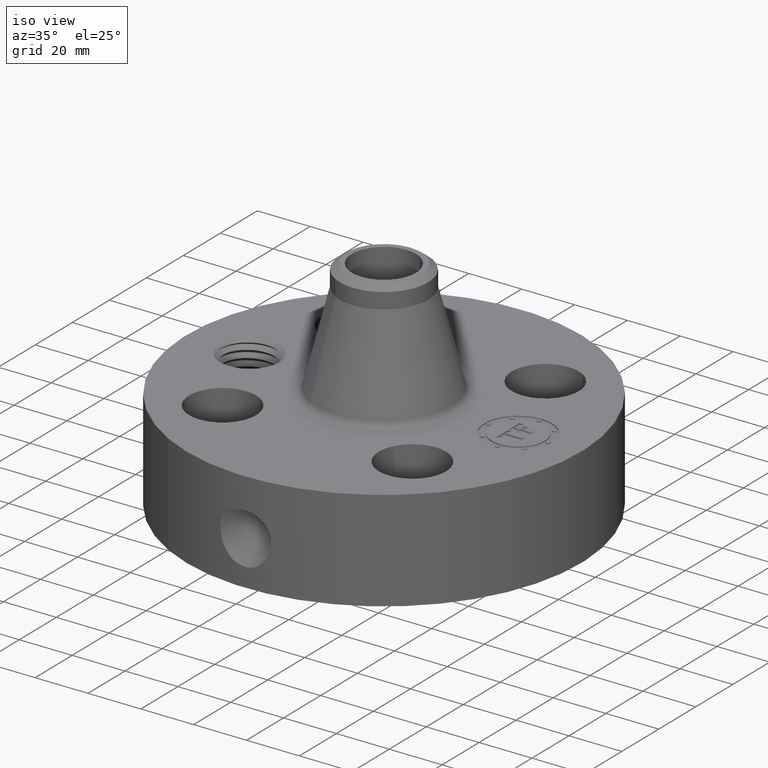
[diagram: clean part render]
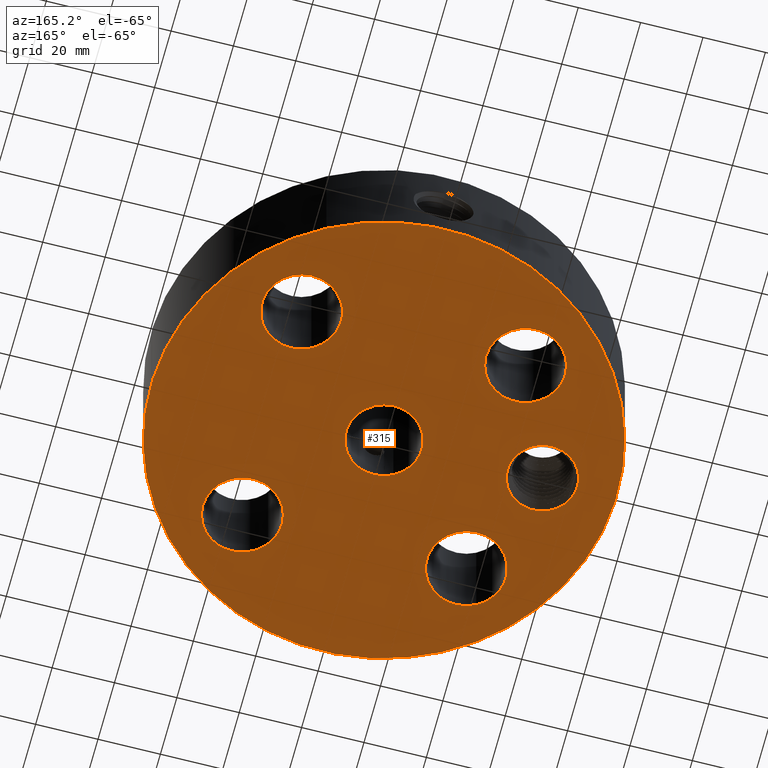
[diagram: tour spotlight — one face highlighted and labeled with its STEP entity id]
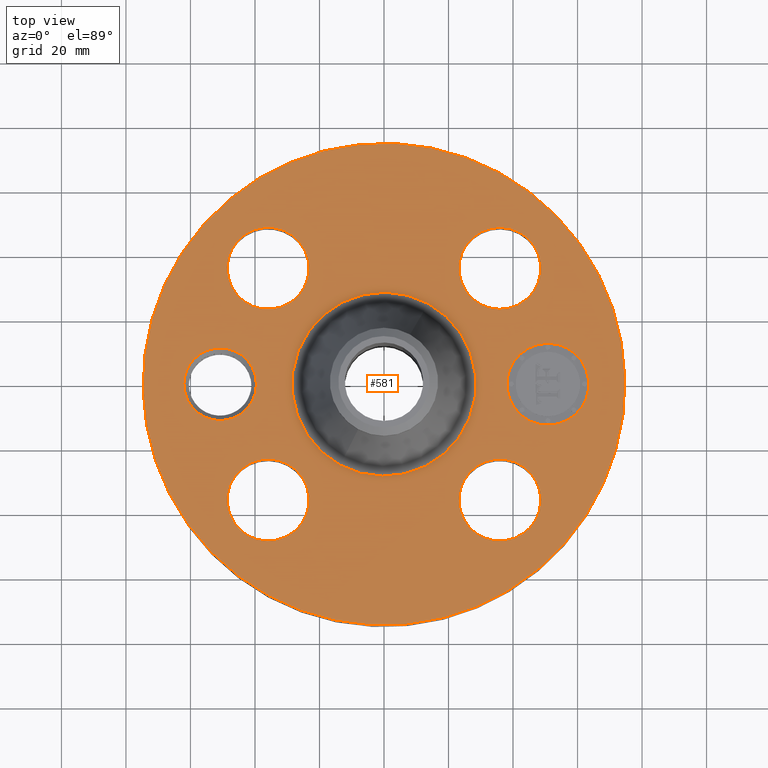
[diagram: tour spotlight — one face highlighted and labeled with its STEP entity id]
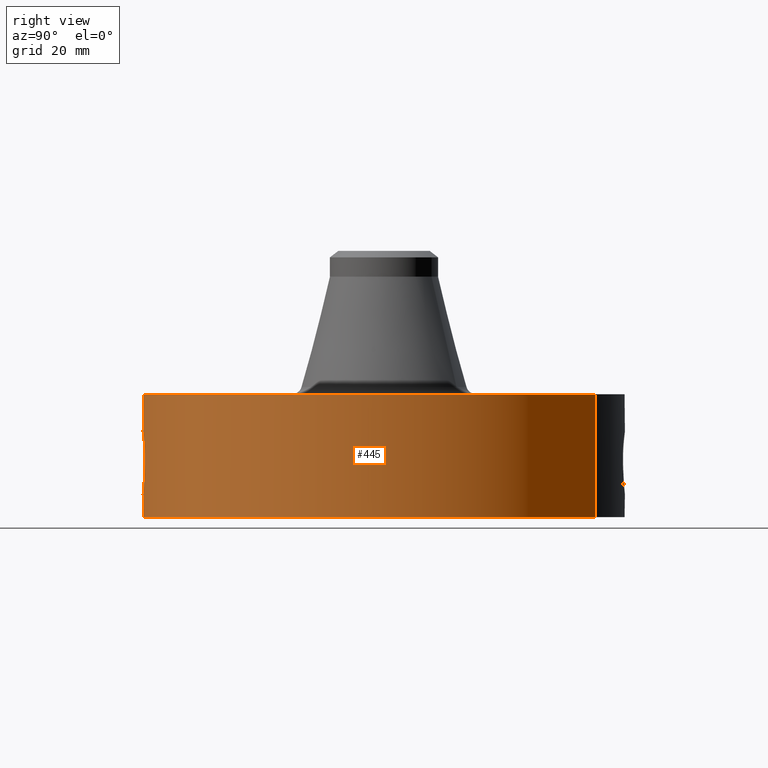
[diagram: tour spotlight — one face highlighted and labeled with its STEP entity id]
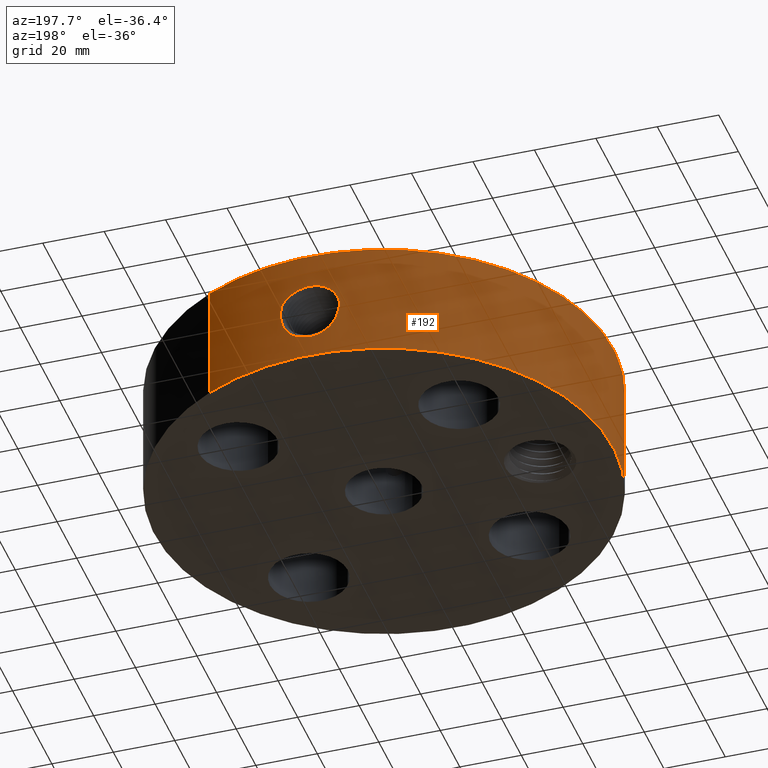
[diagram: tour spotlight — one face highlighted and labeled with its STEP entity id]
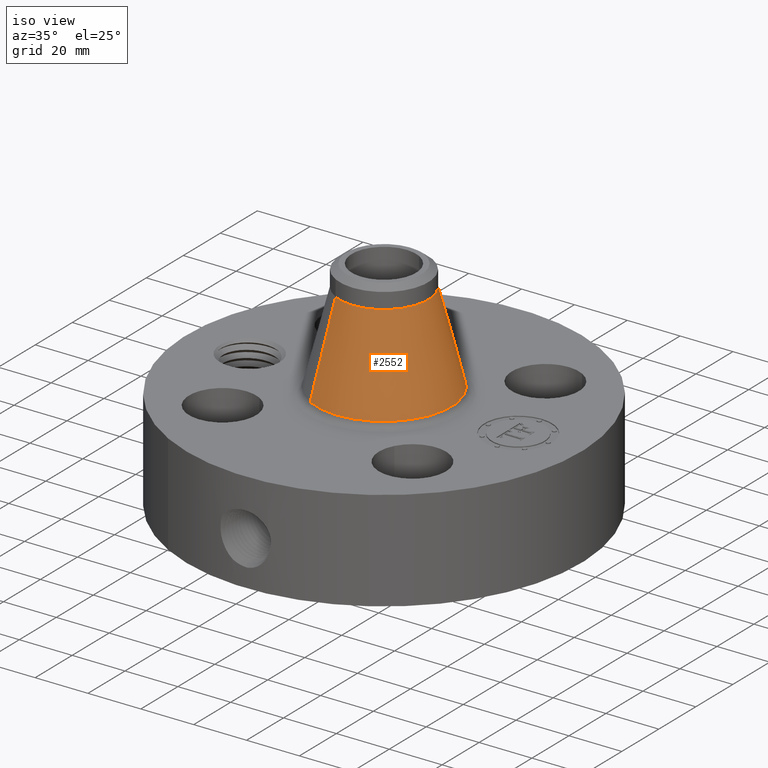
[diagram: tour spotlight — one face highlighted and labeled with its STEP entity id]
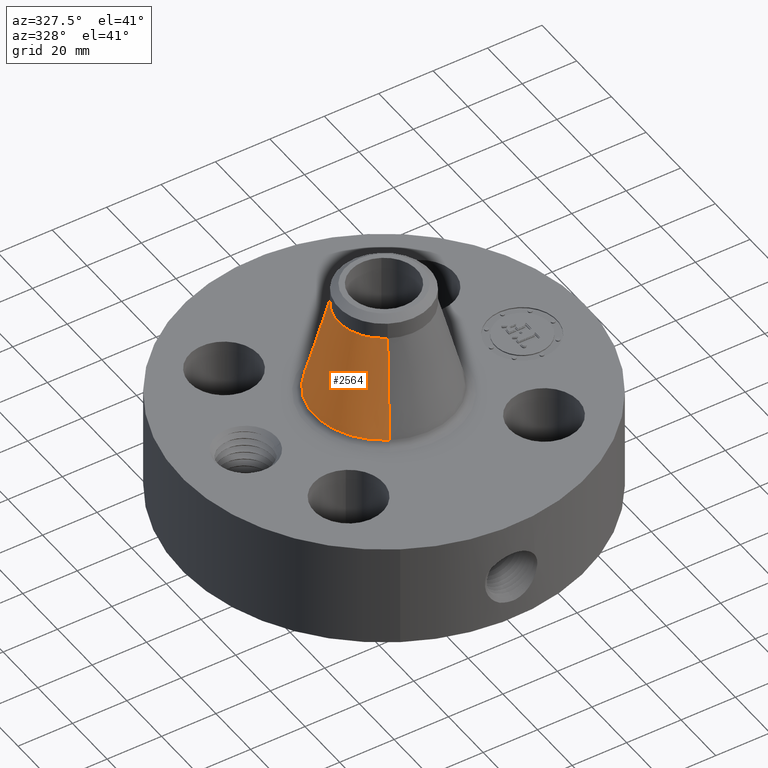
[diagram: tour spotlight — one face highlighted and labeled with its STEP entity id]
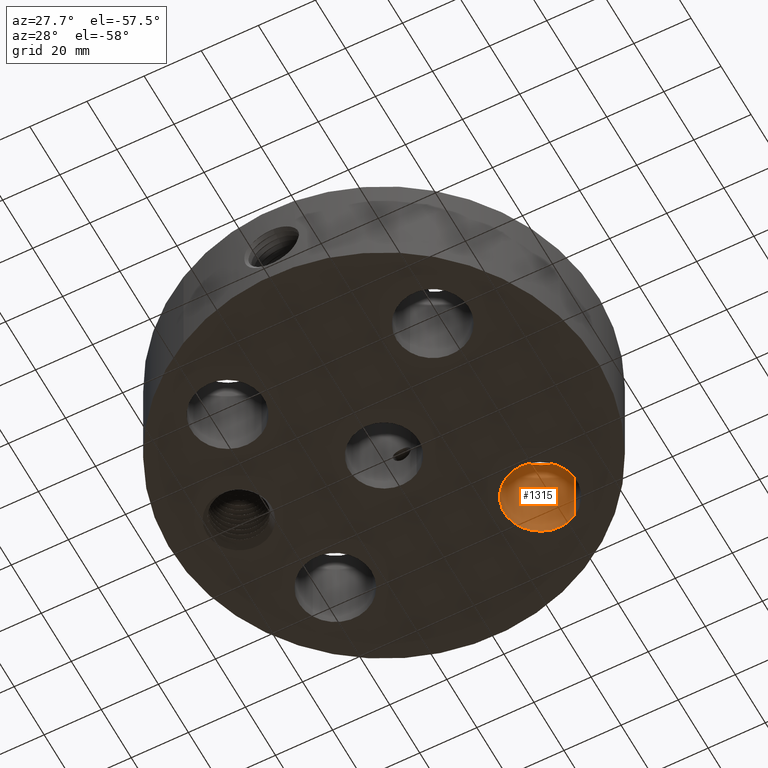
[diagram: tour spotlight — one face highlighted and labeled with its STEP entity id]
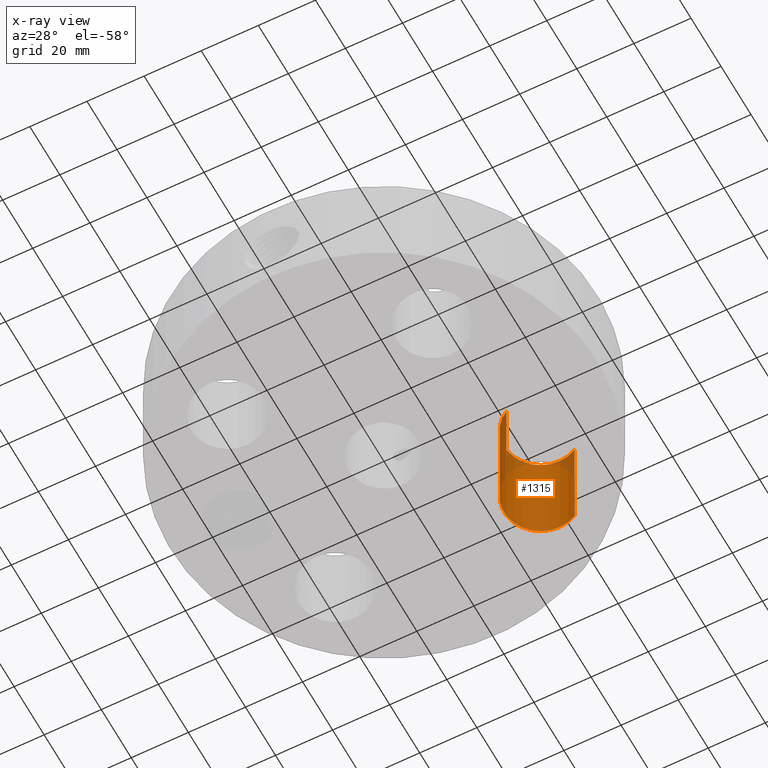
[diagram: x-ray of the same camera — body ghosted, this tour face saturated]
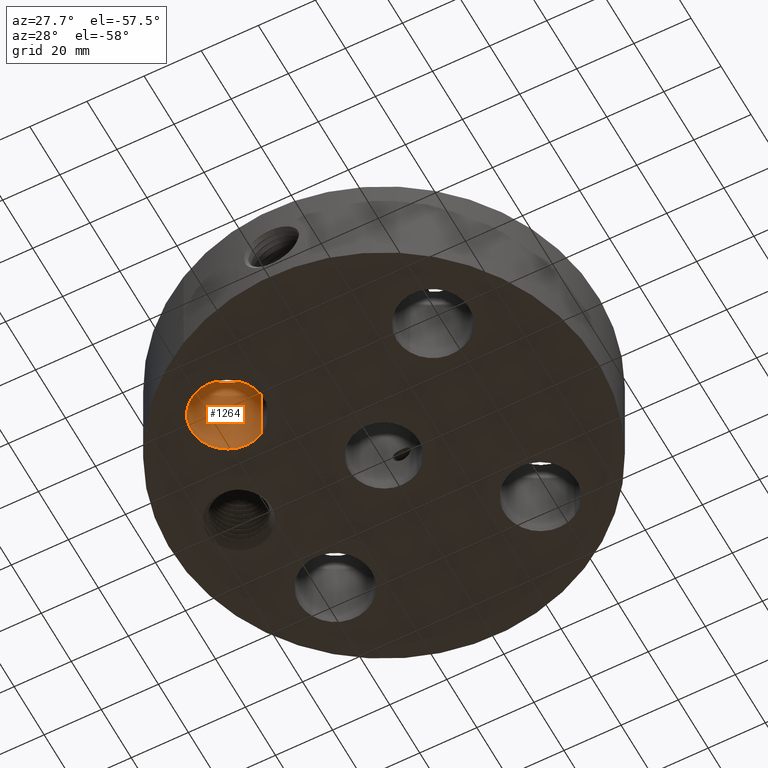
[diagram: tour spotlight — one face highlighted and labeled with its STEP entity id]
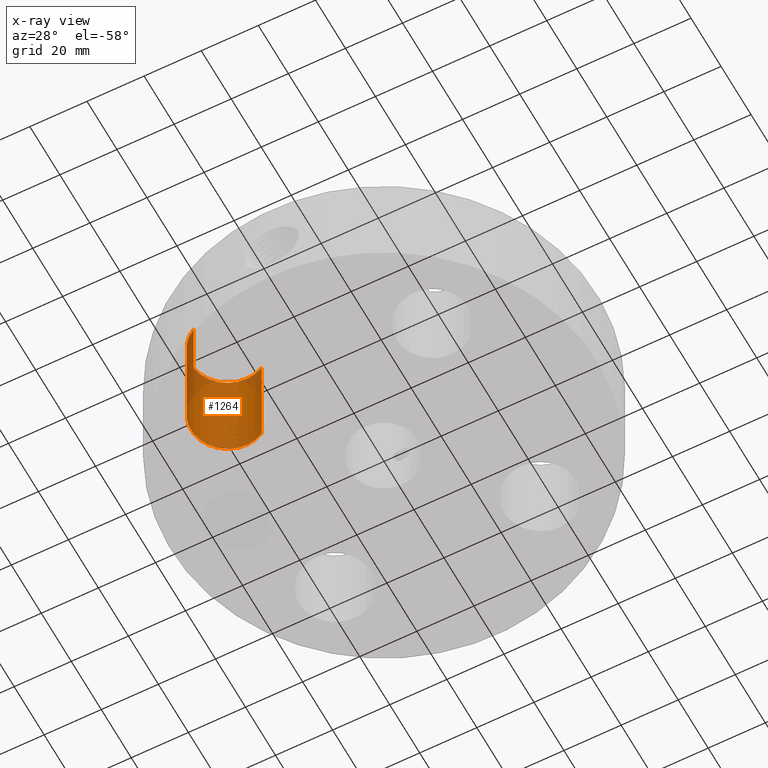
[diagram: x-ray of the same camera — body ghosted, this tour face saturated]
A machine part: a face-by-face anatomy tour. The part has 746 B-rep faces; the first image is the clean iso view, then the 8 largest visible faces are spotlighted one at a time (largest first), each with its STEP entity span.

Face 1 — auxiliary view, entity #315. In plain terms, the highlighted planar face has unit normal (0, 0, -1).
Definition (entity closure, byte-faithful):
#42=AXIS2_PLACEMENT_3D('Circle Axis2P3D',#40,#41,$) ;
#196=AXIS2_PLACEMENT_3D('Plane Axis2P3D',#193,#194,#195) ;
#200=AXIS2_PLACEMENT_3D('Circle Axis2P3D',#198,#199,$) ;
#209=AXIS2_PLACEMENT_3D('Circle Axis2P3D',#207,#208,$) ;
#218=AXIS2_PLACEMENT_3D('Circle Axis2P3D',#216,#217,$) ;
#227=AXIS2_PLACEMENT_3D('Circle Axis2P3D',#225,#226,$) ;
#236=AXIS2_PLACEMENT_3D('Circle Axis2P3D',#234,#235,$) ;
#245=AXIS2_PLACEMENT_3D('Circle Axis2P3D',#243,#244,$) ;
#254=AXIS2_PLACEMENT_3D('Circle Axis2P3D',#252,#253,$) ;
#263=AXIS2_PLACEMENT_3D('Circle Axis2P3D',#261,#262,$) ;
#272=AXIS2_PLACEMENT_3D('Circle Axis2P3D',#270,#271,$) ;
#281=AXIS2_PLACEMENT_3D('Circle Axis2P3D',#279,#280,$) ;
#290=AXIS2_PLACEMENT_3D('Circle Axis2P3D',#288,#289,$) ;
#299=AXIS2_PLACEMENT_3D('Circle Axis2P3D',#297,#298,$) ;
#308=AXIS2_PLACEMENT_3D('Circle Axis2P3D',#306,#307,$) ;
#40=CARTESIAN_POINT('Axis2P3D Location',(0.,0.,0.250000000001)) ;
#44=CARTESIAN_POINT('Vertex',(-1.4095110835,-2.58009273197,0.250000000001)) ;
#46=CARTESIAN_POINT('Vertex',(1.4095110835,2.58009273197,0.250000000001)) ;
#193=CARTESIAN_POINT('Axis2P3D Location',(0.,0.478500000002,0.250000000001)) ;
#198=CARTESIAN_POINT('Axis2P3D Location',(0.,0.,0.250000000001)) ;
#207=CARTESIAN_POINT('Axis2P3D Location',(-2.00000000001,6.99353086378E-017,0.250000000001)) ;
#211=CARTESIAN_POINT('Vertex',(-1.6114064416,-0.212289628495,0.250000000001)) ;
#213=CARTESIAN_POINT('Vertex',(-2.38859355841,0.212289628495,0.250000000001)) ;
#216=CARTESIAN_POINT('Axis2P3D Location',(-2.00000000001,6.99353086378E-017,0.250000000001)) ;
#225=CARTESIAN_POINT('Axis2P3D Location',(1.41421356238,-1.41421356238,0.250000000001)) ;
#229=CARTESIAN_POINT('Vertex',(1.85300484333,-1.65392633168,0.250000000001)) ;
#231=CARTESIAN_POINT('Vertex',(0.975422281432,-1.17450079308,0.250000000001)) ;
#234=CARTESIAN_POINT('Axis2P3D Location',(1.41421356238,-1.41421356238,0.250000000001)) ;
#243=CARTESIAN_POINT('Axis2P3D Location',(0.,0.,0.250000000001)) ;
#247=CARTESIAN_POINT('Vertex',(0.229405120223,0.419923255866,0.250000000001)) ;
#249=CARTESIAN_POINT('Vertex',(-0.229405120223,-0.419923255866,0.250000000001)) ;
#252=CARTESIAN_POINT('Axis2P3D Location',(0.,0.,0.250000000001)) ;
#261=CARTESIAN_POINT('Axis2P3D Location',(-1.41421356238,-1.41421356238,0.250000000001)) ;
#265=CARTESIAN_POINT('Vertex',(-1.17450079308,-0.975422281432,0.250000000001)) ;
#267=CARTESIAN_POINT('Vertex',(-1.65392633168,-1.85300484333,0.250000000001)) ;
#270=CARTESIAN_POINT('Axis2P3D Location',(-1.41421356238,-1.41421356238,0.250000000001)) ;
#279=CARTESIAN_POINT('Axis2P3D Location',(-1.41421356238,1.41421356238,0.250000000001)) ;
#283=CARTESIAN_POINT('Vertex',(-0.975422281432,1.17450079308,0.250000000001)) ;
#285=CARTESIAN_POINT('Vertex',(-1.85300484333,1.65392633168,0.250000000001)) ;
#288=CARTESIAN_POINT('Axis2P3D Location',(-1.41421356238,1.41421356238,0.250000000001)) ;
#297=CARTESIAN_POINT('Axis2P3D Location',(1.41421356238,1.41421356238,0.250000000001)) ;
#301=CARTESIAN_POINT('Vertex',(1.17450079308,0.975422281432,0.250000000001)) ;
#303=CARTESIAN_POINT('Vertex',(1.65392633168,1.85300484333,0.250000000001)) ;
#306=CARTESIAN_POINT('Axis2P3D Location',(1.41421356238,1.41421356238,0.250000000001)) ;
#41=DIRECTION('Axis2P3D Direction',(0.,0.,-0.0393700787402)) ;
#194=DIRECTION('Axis2P3D Direction',(0.,0.,-0.0393700787402)) ;
#195=DIRECTION('Axis2P3D XDirection',(0.0393700787402,0.,0.)) ;
#199=DIRECTION('Axis2P3D Direction',(0.,0.,-0.0393700787402)) ;
#208=DIRECTION('Axis2P3D Direction',(0.,0.,-0.0393700787402)) ;
#217=DIRECTION('Axis2P3D Direction',(0.,0.,-0.0393700787402)) ;
#226=DIRECTION('Axis2P3D Direction',(0.,0.,-0.0393700787402)) ;
#235=DIRECTION('Axis2P3D Direction',(0.,0.,-0.0393700787402)) ;
#244=DIRECTION('Axis2P3D Direction',(0.,0.,-0.0393700787402)) ;
#253=DIRECTION('Axis2P3D Direction',(0.,0.,-0.0393700787402)) ;
#262=DIRECTION('Axis2P3D Direction',(0.,0.,-0.0393700787402)) ;
#271=DIRECTION('Axis2P3D Direction',(0.,0.,-0.0393700787402)) ;
#280=DIRECTION('Axis2P3D Direction',(0.,0.,-0.0393700787402)) ;
#289=DIRECTION('Axis2P3D Direction',(0.,0.,-0.0393700787402)) ;
#298=DIRECTION('Axis2P3D Direction',(0.,0.,-0.0393700787402)) ;
#307=DIRECTION('Axis2P3D Direction',(0.,0.,-0.0393700787402)) ;
#204=ORIENTED_EDGE('',*,*,#48,.T.) ;
#205=ORIENTED_EDGE('',*,*,#202,.T.) ;
#222=ORIENTED_EDGE('',*,*,#215,.F.) ;
#223=ORIENTED_EDGE('',*,*,#220,.F.) ;
#240=ORIENTED_EDGE('',*,*,#233,.F.) ;
#241=ORIENTED_EDGE('',*,*,#238,.F.) ;
#258=ORIENTED_EDGE('',*,*,#251,.F.) ;
#259=ORIENTED_EDGE('',*,*,#256,.F.) ;
#276=ORIENTED_EDGE('',*,*,#269,.F.) ;
#277=ORIENTED_EDGE('',*,*,#274,.F.) ;
#294=ORIENTED_EDGE('',*,*,#287,.F.) ;
#295=ORIENTED_EDGE('',*,*,#292,.F.) ;
#312=ORIENTED_EDGE('',*,*,#305,.F.) ;
#313=ORIENTED_EDGE('',*,*,#310,.F.) ;
#224=FACE_BOUND('',#221,.T.) ;
#242=FACE_BOUND('',#239,.T.) ;
#260=FACE_BOUND('',#257,.T.) ;
#278=FACE_BOUND('',#275,.T.) ;
#296=FACE_BOUND('',#293,.T.) ;
#314=FACE_BOUND('',#311,.T.) ;
#315=ADVANCED_FACE('PartBody',(#206,#224,#242,#260,#278,#296,#314),#197,.T.) ;
#43=CIRCLE('generated circle',#42,2.94000000001) ;
#201=CIRCLE('generated circle',#200,2.94000000001) ;
#210=CIRCLE('generated circle',#209,0.442800000002) ;
#219=CIRCLE('generated circle',#218,0.442800000002) ;
#228=CIRCLE('generated circle',#227,0.500000000002) ;
#237=CIRCLE('generated circle',#236,0.500000000002) ;
#246=CIRCLE('generated circle',#245,0.478500000002) ;
#255=CIRCLE('generated circle',#254,0.478500000002) ;
#264=CIRCLE('generated circle',#263,0.500000000002) ;
#273=CIRCLE('generated circle',#272,0.500000000002) ;
#282=CIRCLE('generated circle',#281,0.500000000002) ;
#291=CIRCLE('generated circle',#290,0.500000000002) ;
#300=CIRCLE('generated circle',#299,0.500000000002) ;
#309=CIRCLE('generated circle',#308,0.500000000002) ;
#48=EDGE_CURVE('',#45,#47,#43,.T.) ;
#202=EDGE_CURVE('',#47,#45,#201,.T.) ;
#215=EDGE_CURVE('',#212,#214,#210,.T.) ;
#220=EDGE_CURVE('',#214,#212,#219,.T.) ;
#233=EDGE_CURVE('',#230,#232,#228,.T.) ;
#238=EDGE_CURVE('',#232,#230,#237,.T.) ;
#251=EDGE_CURVE('',#248,#250,#246,.T.) ;
#256=EDGE_CURVE('',#250,#248,#255,.T.) ;
#269=EDGE_CURVE('',#266,#268,#264,.T.) ;
#274=EDGE_CURVE('',#268,#266,#273,.T.) ;
#287=EDGE_CURVE('',#284,#286,#282,.T.) ;
#292=EDGE_CURVE('',#286,#284,#291,.T.) ;
#305=EDGE_CURVE('',#302,#304,#300,.T.) ;
#310=EDGE_CURVE('',#304,#302,#309,.T.) ;
#203=EDGE_LOOP('',(#204,#205)) ;
#221=EDGE_LOOP('',(#222,#223)) ;
#239=EDGE_LOOP('',(#240,#241)) ;
#257=EDGE_LOOP('',(#258,#259)) ;
#275=EDGE_LOOP('',(#276,#277)) ;
#293=EDGE_LOOP('',(#294,#295)) ;
#311=EDGE_LOOP('',(#312,#313)) ;
#206=FACE_OUTER_BOUND('',#203,.T.) ;
#197=PLANE('',#196) ;
#45=VERTEX_POINT('',#44) ;
#47=VERTEX_POINT('',#46) ;
#212=VERTEX_POINT('',#211) ;
#214=VERTEX_POINT('',#213) ;
#230=VERTEX_POINT('',#229) ;
#232=VERTEX_POINT('',#231) ;
#248=VERTEX_POINT('',#247) ;
#250=VERTEX_POINT('',#249) ;
#266=VERTEX_POINT('',#265) ;
#268=VERTEX_POINT('',#267) ;
#284=VERTEX_POINT('',#283) ;
#286=VERTEX_POINT('',#285) ;
#302=VERTEX_POINT('',#301) ;
#304=VERTEX_POINT('',#303) ;

Face 2 — top view, entity #581. In plain terms, the highlighted planar face has unit normal (0, 0, -1).
Definition (entity closure, byte-faithful):
#58=AXIS2_PLACEMENT_3D('Circle Axis2P3D',#56,#57,$) ;
#318=AXIS2_PLACEMENT_3D('Circle Axis2P3D',#316,#317,$) ;
#449=AXIS2_PLACEMENT_3D('Plane Axis2P3D',#446,#447,#448) ;
#457=AXIS2_PLACEMENT_3D('Circle Axis2P3D',#455,#456,$) ;
#466=AXIS2_PLACEMENT_3D('Circle Axis2P3D',#464,#465,$) ;
#475=AXIS2_PLACEMENT_3D('Circle Axis2P3D',#473,#474,$) ;
#484=AXIS2_PLACEMENT_3D('Circle Axis2P3D',#482,#483,$) ;
#493=AXIS2_PLACEMENT_3D('Circle Axis2P3D',#491,#492,$) ;
#502=AXIS2_PLACEMENT_3D('Circle Axis2P3D',#500,#501,$) ;
#511=AXIS2_PLACEMENT_3D('Circle Axis2P3D',#509,#510,$) ;
#520=AXIS2_PLACEMENT_3D('Circle Axis2P3D',#518,#519,$) ;
#529=AXIS2_PLACEMENT_3D('Circle Axis2P3D',#527,#528,$) ;
#538=AXIS2_PLACEMENT_3D('Circle Axis2P3D',#536,#537,$) ;
#547=AXIS2_PLACEMENT_3D('Circle Axis2P3D',#545,#546,$) ;
#556=AXIS2_PLACEMENT_3D('Circle Axis2P3D',#554,#555,$) ;
#565=AXIS2_PLACEMENT_3D('Circle Axis2P3D',#563,#564,$) ;
#574=AXIS2_PLACEMENT_3D('Circle Axis2P3D',#572,#573,$) ;
#53=CARTESIAN_POINT('Vertex',(-1.4095110835,-2.58009273197,1.75000000001)) ;
#56=CARTESIAN_POINT('Axis2P3D Location',(0.,0.,1.75000000001)) ;
#60=CARTESIAN_POINT('Vertex',(1.4095110835,2.58009273197,1.75000000001)) ;
#316=CARTESIAN_POINT('Axis2P3D Location',(0.,0.,1.75000000001)) ;
#446=CARTESIAN_POINT('Axis2P3D Location',(0.,2.94000000001,1.75000000001)) ;
#455=CARTESIAN_POINT('Axis2P3D Location',(-2.00000000001,5.59482469102E-016,1.75000000001)) ;
#459=CARTESIAN_POINT('Vertex',(-2.38859355841,0.212289628495,1.75000000001)) ;
#461=CARTESIAN_POINT('Vertex',(-1.6114064416,-0.212289628495,1.75000000001)) ;
#464=CARTESIAN_POINT('Axis2P3D Location',(-2.00000000001,5.59482469102E-016,1.75000000001)) ;
#473=CARTESIAN_POINT('Axis2P3D Location',(1.41421356238,-1.41421356238,1.75000000001)) ;
#477=CARTESIAN_POINT('Vertex',(0.975422281432,-1.17450079308,1.75000000001)) ;
#479=CARTESIAN_POINT('Vertex',(1.85300484333,-1.65392633168,1.75000000001)) ;
#482=CARTESIAN_POINT('Axis2P3D Location',(1.41421356238,-1.41421356238,1.75000000001)) ;
#491=CARTESIAN_POINT('Axis2P3D Location',(0.,0.,1.75000000001)) ;
#495=CARTESIAN_POINT('Vertex',(-0.538386626956,-0.985510110177,1.75000000001)) ;
#497=CARTESIAN_POINT('Vertex',(0.538386626956,0.985510110177,1.75000000001)) ;
#500=CARTESIAN_POINT('Axis2P3D Location',(0.,0.,1.75000000001)) ;
#509=CARTESIAN_POINT('Axis2P3D Location',(-1.41421356238,-1.41421356238,1.75000000001)) ;
#513=CARTESIAN_POINT('Vertex',(-1.65392633168,-1.85300484333,1.75000000001)) ;
#515=CARTESIAN_POINT('Vertex',(-1.17450079308,-0.975422281432,1.75000000001)) ;
#518=CARTESIAN_POINT('Axis2P3D Location',(-1.41421356238,-1.41421356238,1.75000000001)) ;
#527=CARTESIAN_POINT('Axis2P3D Location',(-1.41421356238,1.41421356238,1.75000000001)) ;
#531=CARTESIAN_POINT('Vertex',(-1.85300484333,1.65392633168,1.75000000001)) ;
#533=CARTESIAN_POINT('Vertex',(-0.975422281432,1.17450079308,1.75000000001)) ;
#536=CARTESIAN_POINT('Axis2P3D Location',(-1.41421356238,1.41421356238,1.75000000001)) ;
#545=CARTESIAN_POINT('Axis2P3D Location',(1.41421356238,1.41421356238,1.75000000001)) ;
#549=CARTESIAN_POINT('Vertex',(1.65392633168,1.85300484333,1.75000000001)) ;
#551=CARTESIAN_POINT('Vertex',(1.17450079308,0.975422281432,1.75000000001)) ;
#554=CARTESIAN_POINT('Axis2P3D Location',(1.41421356238,1.41421356238,1.75000000001)) ;
#563=CARTESIAN_POINT('Axis2P3D Location',(2.00000000001,-5.03534222192E-015,1.75000000001)) ;
#567=CARTESIAN_POINT('Vertex',(2.00000000001,0.499999995002,1.75000000001)) ;
#569=CARTESIAN_POINT('Vertex',(2.00000000001,-0.499999995002,1.75000000001)) ;
#572=CARTESIAN_POINT('Axis2P3D Location',(2.00000000001,-5.03534222192E-015,1.75000000001)) ;
#57=DIRECTION('Axis2P3D Direction',(0.,0.,-0.0393700787402)) ;
#317=DIRECTION('Axis2P3D Direction',(0.,0.,-0.0393700787402)) ;
#447=DIRECTION('Axis2P3D Direction',(0.,0.,-0.0393700787402)) ;
#448=DIRECTION('Axis2P3D XDirection',(0.0393700787402,0.,0.)) ;
#456=DIRECTION('Axis2P3D Direction',(0.,0.,-0.0393700787402)) ;
#465=DIRECTION('Axis2P3D Direction',(0.,0.,-0.0393700787402)) ;
#474=DIRECTION('Axis2P3D Direction',(0.,0.,-0.0393700787402)) ;
#483=DIRECTION('Axis2P3D Direction',(0.,0.,-0.0393700787402)) ;
#492=DIRECTION('Axis2P3D Direction',(0.,0.,-0.0393700787402)) ;
#501=DIRECTION('Axis2P3D Direction',(0.,0.,-0.0393700787402)) ;
#510=DIRECTION('Axis2P3D Direction',(0.,0.,-0.0393700787402)) ;
#519=DIRECTION('Axis2P3D Direction',(0.,0.,-0.0393700787402)) ;
#528=DIRECTION('Axis2P3D Direction',(0.,0.,-0.0393700787402)) ;
#537=DIRECTION('Axis2P3D Direction',(0.,0.,-0.0393700787402)) ;
#546=DIRECTION('Axis2P3D Direction',(0.,0.,-0.0393700787402)) ;
#555=DIRECTION('Axis2P3D Direction',(0.,0.,-0.0393700787402)) ;
#564=DIRECTION('Axis2P3D Direction',(0.,0.,-0.0393700787402)) ;
#573=DIRECTION('Axis2P3D Direction',(0.,0.,-0.0393700787402)) ;
#452=ORIENTED_EDGE('',*,*,#320,.F.) ;
#453=ORIENTED_EDGE('',*,*,#62,.F.) ;
#470=ORIENTED_EDGE('',*,*,#463,.T.) ;
#471=ORIENTED_EDGE('',*,*,#468,.T.) ;
#488=ORIENTED_EDGE('',*,*,#481,.T.) ;
#489=ORIENTED_EDGE('',*,*,#486,.T.) ;
#506=ORIENTED_EDGE('',*,*,#499,.T.) ;
#507=ORIENTED_EDGE('',*,*,#504,.T.) ;
#524=ORIENTED_EDGE('',*,*,#517,.T.) ;
#525=ORIENTED_EDGE('',*,*,#522,.T.) ;
#542=ORIENTED_EDGE('',*,*,#535,.T.) ;
#543=ORIENTED_EDGE('',*,*,#540,.T.) ;
#560=ORIENTED_EDGE('',*,*,#553,.T.) ;
#561=ORIENTED_EDGE('',*,*,#558,.T.) ;
#578=ORIENTED_EDGE('',*,*,#571,.T.) ;
#579=ORIENTED_EDGE('',*,*,#576,.T.) ;
#472=FACE_BOUND('',#469,.T.) ;
#490=FACE_BOUND('',#487,.T.) ;
#508=FACE_BOUND('',#505,.T.) ;
#526=FACE_BOUND('',#523,.T.) ;
#544=FACE_BOUND('',#541,.T.) ;
#562=FACE_BOUND('',#559,.T.) ;
#580=FACE_BOUND('',#577,.T.) ;
#581=ADVANCED_FACE('PartBody',(#454,#472,#490,#508,#526,#544,#562,#580),#450,.F.) ;
#59=CIRCLE('generated circle',#58,2.94000000001) ;
#319=CIRCLE('generated circle',#318,2.94000000001) ;
#458=CIRCLE('generated circle',#457,0.442800000002) ;
#467=CIRCLE('generated circle',#466,0.442800000002) ;
#476=CIRCLE('generated circle',#475,0.500000000002) ;
#485=CIRCLE('generated circle',#484,0.500000000002) ;
#494=CIRCLE('generated circle',#493,1.12298278586) ;
#503=CIRCLE('generated circle',#502,1.12298278586) ;
#512=CIRCLE('generated circle',#511,0.500000000002) ;
#521=CIRCLE('generated circle',#520,0.500000000002) ;
#530=CIRCLE('generated circle',#529,0.500000000002) ;
#539=CIRCLE('generated circle',#538,0.500000000002) ;
#548=CIRCLE('generated circle',#547,0.500000000002) ;
#557=CIRCLE('generated circle',#556,0.500000000002) ;
#566=CIRCLE('generated circle',#565,0.499999995002) ;
#575=CIRCLE('generated circle',#574,0.499999995002) ;
#62=EDGE_CURVE('',#54,#61,#59,.T.) ;
#320=EDGE_CURVE('',#61,#54,#319,.T.) ;
#463=EDGE_CURVE('',#460,#462,#458,.T.) ;
#468=EDGE_CURVE('',#462,#460,#467,.T.) ;
#481=EDGE_CURVE('',#478,#480,#476,.T.) ;
#486=EDGE_CURVE('',#480,#478,#485,.T.) ;
#499=EDGE_CURVE('',#496,#498,#494,.T.) ;
#504=EDGE_CURVE('',#498,#496,#503,.T.) ;
#517=EDGE_CURVE('',#514,#516,#512,.T.) ;
#522=EDGE_CURVE('',#516,#514,#521,.T.) ;
#535=EDGE_CURVE('',#532,#534,#530,.T.) ;
#540=EDGE_CURVE('',#534,#532,#539,.T.) ;
#553=EDGE_CURVE('',#550,#552,#548,.T.) ;
#558=EDGE_CURVE('',#552,#550,#557,.T.) ;
#571=EDGE_CURVE('',#568,#570,#566,.T.) ;
#576=EDGE_CURVE('',#570,#568,#575,.T.) ;
#451=EDGE_LOOP('',(#452,#453)) ;
#469=EDGE_LOOP('',(#470,#471)) ;
#487=EDGE_LOOP('',(#488,#489)) ;
#505=EDGE_LOOP('',(#506,#507)) ;
#523=EDGE_LOOP('',(#524,#525)) ;
#541=EDGE_LOOP('',(#542,#543)) ;
#559=EDGE_LOOP('',(#560,#561)) ;
#577=EDGE_LOOP('',(#578,#579)) ;
#454=FACE_OUTER_BOUND('',#451,.T.) ;
#450=PLANE('',#449) ;
#54=VERTEX_POINT('',#53) ;
#61=VERTEX_POINT('',#60) ;
#460=VERTEX_POINT('',#459) ;
#462=VERTEX_POINT('',#461) ;
#478=VERTEX_POINT('',#477) ;
#480=VERTEX_POINT('',#479) ;
#496=VERTEX_POINT('',#495) ;
#498=VERTEX_POINT('',#497) ;
#514=VERTEX_POINT('',#513) ;
#516=VERTEX_POINT('',#515) ;
#532=VERTEX_POINT('',#531) ;
#534=VERTEX_POINT('',#533) ;
#550=VERTEX_POINT('',#549) ;
#552=VERTEX_POINT('',#551) ;
#568=VERTEX_POINT('',#567) ;
#570=VERTEX_POINT('',#569) ;

Face 3 — right view, entity #445. In plain terms, the highlighted cylindrical surface (partial cylindrical patch) has radius 74.676 mm, axis along (0, 0, -1).
Definition (entity closure, byte-faithful):
#38=AXIS2_PLACEMENT_3D('Cylinder Axis2P3D',#35,#36,#37) ;
#200=AXIS2_PLACEMENT_3D('Circle Axis2P3D',#198,#199,$) ;
#318=AXIS2_PLACEMENT_3D('Circle Axis2P3D',#316,#317,$) ;
#35=CARTESIAN_POINT('Axis2P3D Location',(0.,0.,1.87500000001)) ;
#44=CARTESIAN_POINT('Vertex',(-1.4095110835,-2.58009273197,0.250000000001)) ;
#46=CARTESIAN_POINT('Vertex',(1.4095110835,2.58009273197,0.250000000001)) ;
#49=CARTESIAN_POINT('Line Origine',(-1.4095110835,-2.58009273197,1.)) ;
#53=CARTESIAN_POINT('Vertex',(-1.4095110835,-2.58009273197,1.75000000001)) ;
#60=CARTESIAN_POINT('Vertex',(1.4095110835,2.58009273197,1.75000000001)) ;
#63=CARTESIAN_POINT('Line Origine',(1.4095110835,2.58009273197,1.)) ;
#198=CARTESIAN_POINT('Axis2P3D Location',(0.,0.,0.250000000001)) ;
#316=CARTESIAN_POINT('Axis2P3D Location',(0.,0.,1.75000000001)) ;
#328=CARTESIAN_POINT('Control Point',(0.169700366944,-2.93509825824,1.25063443807)) ;
#329=CARTESIAN_POINT('Control Point',(0.131085530405,-2.93733087581,1.27180932063)) ;
#330=CARTESIAN_POINT('Control Point',(0.0889177435284,-2.93909301677,1.28658372765)) ;
#331=CARTESIAN_POINT('Control Point',(0.0448209571623,-2.93998913749,1.29402874794)) ;
#332=CARTESIAN_POINT('Control Point',(0.000718274753902,-2.93999991227,1.29411849394)) ;
#333=CARTESIAN_POINT('Vertex',(0.169700366944,-2.93509825824,1.25063443807)) ;
#335=CARTESIAN_POINT('Vertex',(0.000717904281619,-2.93999991236,1.29411850387)) ;
#339=CARTESIAN_POINT('Control Point',(0.199791103393,-2.9332036266,1.23211910498)) ;
#340=CARTESIAN_POINT('Control Point',(0.190079582896,-2.93386511337,1.23878621863)) ;
#341=CARTESIAN_POINT('Control Point',(0.180032889644,-2.93450085647,1.24496848232)) ;
#342=CARTESIAN_POINT('Control Point',(0.169700366944,-2.93509825824,1.25063443807)) ;
#343=CARTESIAN_POINT('Vertex',(0.199780816623,-2.93320402657,1.23212615744)) ;
#347=CARTESIAN_POINT('Control Point',(0.345063619151,-2.91967996513,0.863306930424)) ;
#348=CARTESIAN_POINT('Control Point',(0.358309803902,-2.91811445915,0.902767231199)) ;
#349=CARTESIAN_POINT('Control Point',(0.364827686298,-2.91726797105,0.94486871442)) ;
#350=CARTESIAN_POINT('Control Point',(0.363474119775,-2.91744520393,0.988064415003)) ;
#351=CARTESIAN_POINT('Control Point',(0.344937028359,-2.91981225221,1.07342997875)) ;
#352=CARTESIAN_POINT('Control Point',(0.299056819311,-2.92490799636,1.14752011691)) ;
#353=CARTESIAN_POINT('Control Point',(0.269831477905,-2.92785982733,1.18076998146)) ;
#354=CARTESIAN_POINT('Control Point',(0.236375470813,-2.93071186525,1.20904408377)) ;
#355=CARTESIAN_POINT('Control Point',(0.199780555976,-2.933204345,1.23212576192)) ;
#356=CARTESIAN_POINT('Vertex',(0.345064099859,-2.91967961571,0.863306681734)) ;
#360=CARTESIAN_POINT('Control Point',(0.33827641117,-2.92047411728,0.837346821819)) ;
#361=CARTESIAN_POINT('Control Point',(0.34086559577,-2.9201742139,0.845911270967)) ;
#362=CARTESIAN_POINT('Control Point',(0.343130752325,-2.91990840291,0.854574590322)) ;
#363=CARTESIAN_POINT('Control Point',(0.345065244732,-2.91967977301,0.863311889827)) ;
#364=CARTESIAN_POINT('Vertex',(0.338277877933,-2.92047432356,0.837351409242)) ;
#368=CARTESIAN_POINT('Control Point',(0.0275173309536,-2.93987122109,0.530942006538)) ;
#369=CARTESIAN_POINT('Control Point',(0.0762223620972,-2.93941533974,0.537299414908)) ;
#370=CARTESIAN_POINT('Control Point',(0.12350076469,-2.93796409919,0.552621494238)) ;
#371=CARTESIAN_POINT('Control Point',(0.166891855807,-2.93566147338,0.576269392946)) ;
#372=CARTESIAN_POINT('Control Point',(0.24184451942,-2.93047533837,0.634906614356)) ;
#373=CARTESIAN_POINT('Control Point',(0.294766629768,-2.92532991634,0.711484743946)) ;
#374=CARTESIAN_POINT('Control Point',(0.315003635825,-2.92313640279,0.75198516428)) ;
#375=CARTESIAN_POINT('Control Point',(0.329503476912,-2.92149028267,0.794252683943)) ;
#376=CARTESIAN_POINT('Control Point',(0.338277309264,-2.92047401326,0.837351374146)) ;
#377=CARTESIAN_POINT('Vertex',(0.0275173309536,-2.93987122109,0.530942006538)) ;
#381=CARTESIAN_POINT('Control Point',(0.0275173309536,-2.93987122109,0.530942006538)) ;
#382=CARTESIAN_POINT('Control Point',(0.0183369240002,-2.93995715012,0.53084166981)) ;
#383=CARTESIAN_POINT('Control Point',(0.00915835377777,-2.94000000851,0.530985895771)) ;
#384=CARTESIAN_POINT('Control Point',(-2.72878353014E-006,-2.94000000001,0.531374667804)) ;
#385=CARTESIAN_POINT('Vertex',(-2.72878353691E-006,-2.94000000001,0.531374667804)) ;
#389=CARTESIAN_POINT('Control Point',(-0.196461758711,-2.93342850219,0.580384428303)) ;
#390=CARTESIAN_POINT('Control Point',(-0.15054151398,-2.93650393833,0.558074536738)) ;
#391=CARTESIAN_POINT('Control Point',(-0.101543590141,-2.93882208897,0.542443363995)) ;
#392=CARTESIAN_POINT('Control Point',(-0.0509887956542,-2.93999995269,0.533538381139)) ;
#393=CARTESIAN_POINT('Control Point',(-2.72878353539E-006,-2.94000000001,0.531374667804)) ;
#394=CARTESIAN_POINT('Vertex',(-0.196461421185,-2.93342346249,0.580384428303)) ;
#398=CARTESIAN_POINT('Control Point',(-0.196461794057,-2.93342849982,0.580384447708)) ;
#399=CARTESIAN_POINT('Control Point',(-0.196533175311,-2.93342371917,0.580423635179)) ;
#400=CARTESIAN_POINT('Control Point',(-0.196604556332,-2.93341893505,0.580462822649)) ;
#401=CARTESIAN_POINT('Vertex',(-0.196604556332,-2.93341893505,0.580462822649)) ;
#405=CARTESIAN_POINT('Control Point',(-0.196604556332,-2.93341893505,0.580462822649)) ;
#406=CARTESIAN_POINT('Control Point',(-0.238591966429,-2.93060484122,0.606305192262)) ;
#407=CARTESIAN_POINT('Control Point',(-0.276117850067,-2.9273351627,0.639020628509)) ;
#408=CARTESIAN_POINT('Control Point',(-0.307968830057,-2.92401886321,0.676947773792)) ;
#409=CARTESIAN_POINT('Control Point',(-0.372076285089,-2.91667343954,0.779443088165)) ;
#410=CARTESIAN_POINT('Control Point',(-0.400070774912,-2.91264590125,0.897593415744)) ;
#411=CARTESIAN_POINT('Control Point',(-0.403738809839,-2.91210381362,0.969863240961)) ;
#412=CARTESIAN_POINT('Control Point',(-0.39439161019,-2.91351385719,1.04192148771)) ;
#413=CARTESIAN_POINT('Control Point',(-0.372039707881,-2.91636528162,1.11050070547)) ;
#414=CARTESIAN_POINT('Vertex',(-0.372039707881,-2.91636528162,1.11050070547)) ;
#418=CARTESIAN_POINT('Control Point',(-0.372039707881,-2.91636528162,1.11050070547)) ;
#419=CARTESIAN_POINT('Control Point',(-0.322920722344,-2.92263137357,1.18613831541)) ;
#420=CARTESIAN_POINT('Control Point',(-0.251553256769,-2.93070739542,1.24504313066)) ;
#421=CARTESIAN_POINT('Control Point',(-0.169948933718,-2.93699921376,1.2817236961)) ;
#422=CARTESIAN_POINT('Control Point',(-0.0841723274076,-2.94000074044,1.29828021431)) ;
#423=CARTESIAN_POINT('Control Point',(2.58579354844E-005,-2.9399999999,1.29415298444)) ;
#424=CARTESIAN_POINT('Vertex',(2.58579354886E-005,-2.9399999999,1.29415298444)) ;
#428=CARTESIAN_POINT('Control Point',(0.000717904267248,-2.93999991236,1.29411850386)) ;
#429=CARTESIAN_POINT('Control Point',(0.000371903035692,-2.93999999685,1.29413602199)) ;
#430=CARTESIAN_POINT('Control Point',(2.585794629E-005,-2.9399999999,1.29415298443)) ;
#36=DIRECTION('Axis2P3D Direction',(0.,0.,-0.0393700787402)) ;
#37=DIRECTION('Axis2P3D XDirection',(0.0188750212049,0.0345504945626,0.)) ;
#50=DIRECTION('Vector Direction',(0.,0.,-0.0393700787402)) ;
#64=DIRECTION('Vector Direction',(0.,0.,-0.0393700787402)) ;
#199=DIRECTION('Axis2P3D Direction',(0.,0.,-0.0393700787402)) ;
#317=DIRECTION('Axis2P3D Direction',(0.,0.,-0.0393700787402)) ;
#51=VECTOR('Line Direction',#50,0.0393700787402) ;
#65=VECTOR('Line Direction',#64,0.0393700787402) ;
#322=ORIENTED_EDGE('',*,*,#202,.F.) ;
#323=ORIENTED_EDGE('',*,*,#67,.T.) ;
#324=ORIENTED_EDGE('',*,*,#320,.T.) ;
#325=ORIENTED_EDGE('',*,*,#55,.F.) ;
#433=ORIENTED_EDGE('',*,*,#337,.F.) ;
#434=ORIENTED_EDGE('',*,*,#345,.F.) ;
#435=ORIENTED_EDGE('',*,*,#358,.F.) ;
#436=ORIENTED_EDGE('',*,*,#366,.F.) ;
#437=ORIENTED_EDGE('',*,*,#379,.F.) ;
#438=ORIENTED_EDGE('',*,*,#387,.T.) ;
#439=ORIENTED_EDGE('',*,*,#396,.F.) ;
#440=ORIENTED_EDGE('',*,*,#403,.T.) ;
#441=ORIENTED_EDGE('',*,*,#416,.T.) ;
#442=ORIENTED_EDGE('',*,*,#426,.T.) ;
#443=ORIENTED_EDGE('',*,*,#431,.F.) ;
#444=FACE_BOUND('',#432,.T.) ;
#445=ADVANCED_FACE('PartBody',(#326,#444),#39,.T.) ;
#327=B_SPLINE_CURVE_WITH_KNOTS('',4,(#328,#329,#330,#331,#332),.UNSPECIFIED.,.F.,.U.,(5,5),(0.,6.52375943353),.UNSPECIFIED.) ;
#338=B_SPLINE_CURVE_WITH_KNOTS('',3,(#339,#340,#341,#342),.UNSPECIFIED.,.F.,.U.,(4,4),(27.427600839,28.736817033),.UNSPECIFIED.) ;
#346=B_SPLINE_CURVE_WITH_KNOTS('',5,(#347,#348,#349,#350,#351,#352,#353,#354,#355),.UNSPECIFIED.,.F.,.U.,(6,3,6),(0.,7.77866996636,15.8636824925),.UNSPECIFIED.) ;
#359=B_SPLINE_CURVE_WITH_KNOTS('',3,(#360,#361,#362,#363),.UNSPECIFIED.,.F.,.U.,(4,4),(10.8529360661,11.8469803779),.UNSPECIFIED.) ;
#367=B_SPLINE_CURVE_WITH_KNOTS('',5,(#368,#369,#370,#371,#372,#373,#374,#375,#376),.UNSPECIFIED.,.F.,.U.,(6,3,6),(0.,8.53785437818,16.7787224443),.UNSPECIFIED.) ;
#380=B_SPLINE_CURVE_WITH_KNOTS('',3,(#381,#382,#383,#384),.UNSPECIFIED.,.F.,.U.,(4,4),(0.,0.957440216897),.UNSPECIFIED.) ;
#388=B_SPLINE_CURVE_WITH_KNOTS('',4,(#389,#390,#391,#392,#393),.UNSPECIFIED.,.F.,.U.,(5,5),(0.,7.10485332459),.UNSPECIFIED.) ;
#397=B_SPLINE_CURVE_WITH_KNOTS('',2,(#398,#399,#400),.UNSPECIFIED.,.F.,.U.,(3,3),(-0.0020713854073,0.00207241137113),.UNSPECIFIED.) ;
#404=B_SPLINE_CURVE_WITH_KNOTS('',5,(#405,#406,#407,#408,#409,#410,#411,#412,#413),.UNSPECIFIED.,.F.,.U.,(6,3,6),(0.,8.5750449157,21.1331244846),.UNSPECIFIED.) ;
#417=B_SPLINE_CURVE_WITH_KNOTS('',5,(#418,#419,#420,#421,#422,#423),.UNSPECIFIED.,.F.,.U.,(6,6),(0.,15.7383793424),.UNSPECIFIED.) ;
#427=B_SPLINE_CURVE_WITH_KNOTS('',2,(#428,#429,#430),.UNSPECIFIED.,.F.,.U.,(3,3),(1.20449888297,1.2303720743),.UNSPECIFIED.) ;
#201=CIRCLE('generated circle',#200,2.94000000001) ;
#319=CIRCLE('generated circle',#318,2.94000000001) ;
#39=CYLINDRICAL_SURFACE('generated cylinder',#38,2.94000000001) ;
#55=EDGE_CURVE('',#45,#54,#52,.F.) ;
#67=EDGE_CURVE('',#47,#61,#66,.F.) ;
#202=EDGE_CURVE('',#47,#45,#201,.T.) ;
#320=EDGE_CURVE('',#61,#54,#319,.T.) ;
#337=EDGE_CURVE('',#334,#336,#327,.T.) ;
#345=EDGE_CURVE('',#344,#334,#338,.T.) ;
#358=EDGE_CURVE('',#357,#344,#346,.T.) ;
#366=EDGE_CURVE('',#365,#357,#359,.T.) ;
#379=EDGE_CURVE('',#378,#365,#367,.T.) ;
#387=EDGE_CURVE('',#378,#386,#380,.T.) ;
#396=EDGE_CURVE('',#395,#386,#388,.T.) ;
#403=EDGE_CURVE('',#395,#402,#397,.T.) ;
#416=EDGE_CURVE('',#402,#415,#404,.T.) ;
#426=EDGE_CURVE('',#415,#425,#417,.T.) ;
#431=EDGE_CURVE('',#336,#425,#427,.T.) ;
#321=EDGE_LOOP('',(#322,#323,#324,#325)) ;
#432=EDGE_LOOP('',(#433,#434,#435,#436,#437,#438,#439,#440,#441,#442,#443)) ;
#326=FACE_OUTER_BOUND('',#321,.T.) ;
#52=LINE('Line',#49,#51) ;
#66=LINE('Line',#63,#65) ;
#45=VERTEX_POINT('',#44) ;
#47=VERTEX_POINT('',#46) ;
#54=VERTEX_POINT('',#53) ;
#61=VERTEX_POINT('',#60) ;
#334=VERTEX_POINT('',#333) ;
#336=VERTEX_POINT('',#335) ;
#344=VERTEX_POINT('',#343) ;
#357=VERTEX_POINT('',#356) ;
#365=VERTEX_POINT('',#364) ;
#378=VERTEX_POINT('',#377) ;
#386=VERTEX_POINT('',#385) ;
#395=VERTEX_POINT('',#394) ;
#402=VERTEX_POINT('',#401) ;
#415=VERTEX_POINT('',#414) ;
#425=VERTEX_POINT('',#424) ;

Face 4 — auxiliary view, entity #192. In plain terms, the highlighted cylindrical surface (partial cylindrical patch) has radius 74.676 mm, axis along (0, 0, -1).
Definition (entity closure, byte-faithful):
#38=AXIS2_PLACEMENT_3D('Cylinder Axis2P3D',#35,#36,#37) ;
#42=AXIS2_PLACEMENT_3D('Circle Axis2P3D',#40,#41,$) ;
#58=AXIS2_PLACEMENT_3D('Circle Axis2P3D',#56,#57,$) ;
#35=CARTESIAN_POINT('Axis2P3D Location',(0.,0.,1.87500000001)) ;
#40=CARTESIAN_POINT('Axis2P3D Location',(0.,0.,0.250000000001)) ;
#44=CARTESIAN_POINT('Vertex',(-1.4095110835,-2.58009273197,0.250000000001)) ;
#46=CARTESIAN_POINT('Vertex',(1.4095110835,2.58009273197,0.250000000001)) ;
#49=CARTESIAN_POINT('Line Origine',(-1.4095110835,-2.58009273197,1.)) ;
#53=CARTESIAN_POINT('Vertex',(-1.4095110835,-2.58009273197,1.75000000001)) ;
#56=CARTESIAN_POINT('Axis2P3D Location',(0.,0.,1.75000000001)) ;
#60=CARTESIAN_POINT('Vertex',(1.4095110835,2.58009273197,1.75000000001)) ;
#63=CARTESIAN_POINT('Line Origine',(1.4095110835,2.58009273197,1.)) ;
#75=CARTESIAN_POINT('Control Point',(-0.169700366944,2.93509825824,1.25063443807)) ;
#76=CARTESIAN_POINT('Control Point',(-0.131085530404,2.93733087581,1.27180932063)) ;
#77=CARTESIAN_POINT('Control Point',(-0.0889177435309,2.93909301677,1.28658372765)) ;
#78=CARTESIAN_POINT('Control Point',(-0.0448209571643,2.93998913749,1.29402874794)) ;
#79=CARTESIAN_POINT('Control Point',(-0.000718274753899,2.93999991227,1.29411849394)) ;
#80=CARTESIAN_POINT('Vertex',(-0.169700366944,2.93509825824,1.25063443807)) ;
#82=CARTESIAN_POINT('Vertex',(-0.000717904281617,2.93999991236,1.29411850387)) ;
#86=CARTESIAN_POINT('Control Point',(-0.199791103393,2.9332036266,1.23211910498)) ;
#87=CARTESIAN_POINT('Control Point',(-0.190079582897,2.93386511337,1.23878621863)) ;
#88=CARTESIAN_POINT('Control Point',(-0.180032889644,2.93450085647,1.24496848232)) ;
#89=CARTESIAN_POINT('Control Point',(-0.169700366944,2.93509825824,1.25063443807)) ;
#90=CARTESIAN_POINT('Vertex',(-0.199780816623,2.93320402657,1.23212615744)) ;
#94=CARTESIAN_POINT('Control Point',(-0.345063619151,2.91967996513,0.863306930424)) ;
#95=CARTESIAN_POINT('Control Point',(-0.358309803903,2.91811445915,0.902767231201)) ;
#96=CARTESIAN_POINT('Control Point',(-0.364827686299,2.91726797105,0.944868714425)) ;
#97=CARTESIAN_POINT('Control Point',(-0.363474119777,2.91744520393,0.988064414998)) ;
#98=CARTESIAN_POINT('Control Point',(-0.34493702836,2.91981225221,1.07342997875)) ;
#99=CARTESIAN_POINT('Control Point',(-0.299056819313,2.92490799636,1.14752011691)) ;
#100=CARTESIAN_POINT('Control Point',(-0.269831477903,2.92785982733,1.18076998146)) ;
#101=CARTESIAN_POINT('Control Point',(-0.236375470812,2.93071186525,1.20904408377)) ;
#102=CARTESIAN_POINT('Control Point',(-0.199780555976,2.933204345,1.23212576192)) ;
#103=CARTESIAN_POINT('Vertex',(-0.345064099859,2.91967961571,0.863306681734)) ;
#107=CARTESIAN_POINT('Control Point',(-0.33827641117,2.92047411728,0.837346821817)) ;
#108=CARTESIAN_POINT('Control Point',(-0.34086559577,2.9201742139,0.845911270964)) ;
#109=CARTESIAN_POINT('Control Point',(-0.343130752325,2.91990840291,0.85457459032)) ;
#110=CARTESIAN_POINT('Control Point',(-0.345065244732,2.91967977301,0.863311889826)) ;
#111=CARTESIAN_POINT('Vertex',(-0.338277877933,2.92047432356,0.837351409242)) ;
#115=CARTESIAN_POINT('Control Point',(-0.0275173309536,2.93987122109,0.530942006538)) ;
#116=CARTESIAN_POINT('Control Point',(-0.0762223621019,2.93941533974,0.537299414908)) ;
#117=CARTESIAN_POINT('Control Point',(-0.123500764699,2.93796409919,0.552621494238)) ;
#118=CARTESIAN_POINT('Control Point',(-0.166891855799,2.93566147338,0.576269392942)) ;
#119=CARTESIAN_POINT('Control Point',(-0.241844519415,2.93047533837,0.634906614349)) ;
#120=CARTESIAN_POINT('Control Point',(-0.294766629762,2.92532991634,0.71148474394)) ;
#121=CARTESIAN_POINT('Control Point',(-0.315003635828,2.92313640279,0.751985164288)) ;
#122=CARTESIAN_POINT('Control Point',(-0.329503476913,2.92149028267,0.794252683947)) ;
#123=CARTESIAN_POINT('Control Point',(-0.338277309264,2.92047401326,0.837351374146)) ;
#124=CARTESIAN_POINT('Vertex',(-0.0275173309536,2.93987122109,0.530942006538)) ;
#128=CARTESIAN_POINT('Control Point',(-0.0275173309536,2.93987122109,0.530942006538)) ;
#129=CARTESIAN_POINT('Control Point',(-0.0183369240002,2.93995715012,0.53084166981)) ;
#130=CARTESIAN_POINT('Control Point',(-0.00915835377776,2.94000000851,0.530985895771)) ;
#131=CARTESIAN_POINT('Control Point',(2.7287835324E-006,2.94000000001,0.531374667804)) ;
#132=CARTESIAN_POINT('Vertex',(2.72878353649E-006,2.94000000001,0.531374667804)) ;
#136=CARTESIAN_POINT('Control Point',(0.196461758711,2.93342850219,0.580384428303)) ;
#137=CARTESIAN_POINT('Control Point',(0.150541513979,2.93650393833,0.558074536738)) ;
#138=CARTESIAN_POINT('Control Point',(0.101543590142,2.93882208897,0.542443363994)) ;
#139=CARTESIAN_POINT('Control Point',(0.0509887956556,2.93999995269,0.533538381139)) ;
#140=CARTESIAN_POINT('Control Point',(2.72878353761E-006,2.94000000001,0.531374667804)) ;
#141=CARTESIAN_POINT('Vertex',(0.196461421185,2.93342346249,0.580384428303)) ;
#145=CARTESIAN_POINT('Control Point',(0.196461794057,2.93342849982,0.580384447708)) ;
#146=CARTESIAN_POINT('Control Point',(0.196533175311,2.93342371917,0.580423635179)) ;
#147=CARTESIAN_POINT('Control Point',(0.196604556332,2.93341893505,0.580462822649)) ;
#148=CARTESIAN_POINT('Vertex',(0.196604556332,2.93341893505,0.580462822649)) ;
#152=CARTESIAN_POINT('Control Point',(0.196604556332,2.93341893505,0.580462822649)) ;
#153=CARTESIAN_POINT('Control Point',(0.238591966428,2.93060484122,0.606305192262)) ;
#154=CARTESIAN_POINT('Control Point',(0.276117850067,2.9273351627,0.639020628506)) ;
#155=CARTESIAN_POINT('Control Point',(0.307968830063,2.92401886321,0.6769477738)) ;
#156=CARTESIAN_POINT('Control Point',(0.372076285096,2.91667343954,0.77944308818)) ;
#157=CARTESIAN_POINT('Control Point',(0.400070774917,2.91264590125,0.897593415768)) ;
#158=CARTESIAN_POINT('Control Point',(0.403738809841,2.91210381362,0.969863240946)) ;
#159=CARTESIAN_POINT('Control Point',(0.394391610192,2.91351385719,1.04192148771)) ;
#160=CARTESIAN_POINT('Control Point',(0.372039707881,2.91636528162,1.11050070547)) ;
#161=CARTESIAN_POINT('Vertex',(0.372039707881,2.91636528162,1.11050070547)) ;
#165=CARTESIAN_POINT('Control Point',(0.372039707881,2.91636528162,1.11050070547)) ;
#166=CARTESIAN_POINT('Control Point',(0.322920722343,2.92263137357,1.18613831541)) ;
#167=CARTESIAN_POINT('Control Point',(0.251553256782,2.93070739542,1.24504313065)) ;
#168=CARTESIAN_POINT('Control Point',(0.169948933719,2.93699921376,1.28172369611)) ;
#169=CARTESIAN_POINT('Control Point',(0.084172327409,2.94000074044,1.29828021431)) ;
#170=CARTESIAN_POINT('Control Point',(-2.58579354873E-005,2.9399999999,1.29415298444)) ;
#171=CARTESIAN_POINT('Vertex',(-2.58579354889E-005,2.9399999999,1.29415298444)) ;
#175=CARTESIAN_POINT('Control Point',(-0.000717904267245,2.93999991236,1.29411850386)) ;
#176=CARTESIAN_POINT('Control Point',(-0.000371903035691,2.93999999685,1.29413602199)) ;
#177=CARTESIAN_POINT('Control Point',(-2.58579462903E-005,2.9399999999,1.29415298443)) ;
#36=DIRECTION('Axis2P3D Direction',(0.,0.,-0.0393700787402)) ;
#37=DIRECTION('Axis2P3D XDirection',(0.0188750212049,0.0345504945626,0.)) ;
#41=DIRECTION('Axis2P3D Direction',(0.,0.,-0.0393700787402)) ;
#50=DIRECTION('Vector Direction',(0.,0.,-0.0393700787402)) ;
#57=DIRECTION('Axis2P3D Direction',(0.,0.,-0.0393700787402)) ;
#64=DIRECTION('Vector Direction',(0.,0.,-0.0393700787402)) ;
#51=VECTOR('Line Direction',#50,0.0393700787402) ;
#65=VECTOR('Line Direction',#64,0.0393700787402) ;
#69=ORIENTED_EDGE('',*,*,#48,.F.) ;
#70=ORIENTED_EDGE('',*,*,#55,.T.) ;
#71=ORIENTED_EDGE('',*,*,#62,.T.) ;
#72=ORIENTED_EDGE('',*,*,#67,.F.) ;
#180=ORIENTED_EDGE('',*,*,#84,.F.) ;
#181=ORIENTED_EDGE('',*,*,#92,.F.) ;
#182=ORIENTED_EDGE('',*,*,#105,.F.) ;
#183=ORIENTED_EDGE('',*,*,#113,.F.) ;
#184=ORIENTED_EDGE('',*,*,#126,.F.) ;
#185=ORIENTED_EDGE('',*,*,#134,.T.) ;
#186=ORIENTED_EDGE('',*,*,#143,.F.) ;
#187=ORIENTED_EDGE('',*,*,#150,.T.) ;
#188=ORIENTED_EDGE('',*,*,#163,.T.) ;
#189=ORIENTED_EDGE('',*,*,#173,.T.) ;
#190=ORIENTED_EDGE('',*,*,#178,.F.) ;
#191=FACE_BOUND('',#179,.T.) ;
#192=ADVANCED_FACE('PartBody',(#73,#191),#39,.T.) ;
#74=B_SPLINE_CURVE_WITH_KNOTS('',4,(#75,#76,#77,#78,#79),.UNSPECIFIED.,.F.,.U.,(5,5),(0.,6.52375943382),.UNSPECIFIED.) ;
#85=B_SPLINE_CURVE_WITH_KNOTS('',3,(#86,#87,#88,#89),.UNSPECIFIED.,.F.,.U.,(4,4),(27.4276008394,28.7368170334),.UNSPECIFIED.) ;
#93=B_SPLINE_CURVE_WITH_KNOTS('',5,(#94,#95,#96,#97,#98,#99,#100,#101,#102),.UNSPECIFIED.,.F.,.U.,(6,3,6),(0.,7.77866996677,15.8636824927),.UNSPECIFIED.) ;
#106=B_SPLINE_CURVE_WITH_KNOTS('',3,(#107,#108,#109,#110),.UNSPECIFIED.,.F.,.U.,(4,4),(10.8529360686,11.8469803809),.UNSPECIFIED.) ;
#114=B_SPLINE_CURVE_WITH_KNOTS('',5,(#115,#116,#117,#118,#119,#120,#121,#122,#123),.UNSPECIFIED.,.F.,.U.,(6,3,6),(0.,8.537854379,16.7787224443),.UNSPECIFIED.) ;
#127=B_SPLINE_CURVE_WITH_KNOTS('',3,(#128,#129,#130,#131),.UNSPECIFIED.,.F.,.U.,(4,4),(0.,0.957440216897),.UNSPECIFIED.) ;
#135=B_SPLINE_CURVE_WITH_KNOTS('',4,(#136,#137,#138,#139,#140),.UNSPECIFIED.,.F.,.U.,(5,5),(0.,7.10485332478),.UNSPECIFIED.) ;
#144=B_SPLINE_CURVE_WITH_KNOTS('',2,(#145,#146,#147),.UNSPECIFIED.,.F.,.U.,(3,3),(-0.00207138540727,0.00207241137106),.UNSPECIFIED.) ;
#151=B_SPLINE_CURVE_WITH_KNOTS('',5,(#152,#153,#154,#155,#156,#157,#158,#159,#160),.UNSPECIFIED.,.F.,.U.,(6,3,6),(0.,8.5750449156,21.1331244859),.UNSPECIFIED.) ;
#164=B_SPLINE_CURVE_WITH_KNOTS('',5,(#165,#166,#167,#168,#169,#170),.UNSPECIFIED.,.F.,.U.,(6,6),(0.,15.7383793426),.UNSPECIFIED.) ;
#174=B_SPLINE_CURVE_WITH_KNOTS('',2,(#175,#176,#177),.UNSPECIFIED.,.F.,.U.,(3,3),(1.20449888297,1.2303720743),.UNSPECIFIED.) ;
#43=CIRCLE('generated circle',#42,2.94000000001) ;
#59=CIRCLE('generated circle',#58,2.94000000001) ;
#39=CYLINDRICAL_SURFACE('generated cylinder',#38,2.94000000001) ;
#48=EDGE_CURVE('',#45,#47,#43,.T.) ;
#55=EDGE_CURVE('',#45,#54,#52,.F.) ;
#62=EDGE_CURVE('',#54,#61,#59,.T.) ;
#67=EDGE_CURVE('',#47,#61,#66,.F.) ;
#84=EDGE_CURVE('',#81,#83,#74,.T.) ;
#92=EDGE_CURVE('',#91,#81,#85,.T.) ;
#105=EDGE_CURVE('',#104,#91,#93,.T.) ;
#113=EDGE_CURVE('',#112,#104,#106,.T.) ;
#126=EDGE_CURVE('',#125,#112,#114,.T.) ;
#134=EDGE_CURVE('',#125,#133,#127,.T.) ;
#143=EDGE_CURVE('',#142,#133,#135,.T.) ;
#150=EDGE_CURVE('',#142,#149,#144,.T.) ;
#163=EDGE_CURVE('',#149,#162,#151,.T.) ;
#173=EDGE_CURVE('',#162,#172,#164,.T.) ;
#178=EDGE_CURVE('',#83,#172,#174,.T.) ;
#68=EDGE_LOOP('',(#69,#70,#71,#72)) ;
#179=EDGE_LOOP('',(#180,#181,#182,#183,#184,#185,#186,#187,#188,#189,#190)) ;
#73=FACE_OUTER_BOUND('',#68,.T.) ;
#52=LINE('Line',#49,#51) ;
#66=LINE('Line',#63,#65) ;
#45=VERTEX_POINT('',#44) ;
#47=VERTEX_POINT('',#46) ;
#54=VERTEX_POINT('',#53) ;
#61=VERTEX_POINT('',#60) ;
#81=VERTEX_POINT('',#80) ;
#83=VERTEX_POINT('',#82) ;
#91=VERTEX_POINT('',#90) ;
#104=VERTEX_POINT('',#103) ;
#112=VERTEX_POINT('',#111) ;
#125=VERTEX_POINT('',#124) ;
#133=VERTEX_POINT('',#132) ;
#142=VERTEX_POINT('',#141) ;
#149=VERTEX_POINT('',#148) ;
#162=VERTEX_POINT('',#161) ;
#172=VERTEX_POINT('',#171) ;

Face 5 — iso view, entity #2552. In plain terms, the highlighted conical surface has half-angle 14.459 deg.
Definition (entity closure, byte-faithful):
#1852=AXIS2_PLACEMENT_3D('Circle Axis2P3D',#1850,#1851,$) ;
#2525=AXIS2_PLACEMENT_3D('Cone Axis2P3D',#2522,#2523,#2524) ;
#2536=AXIS2_PLACEMENT_3D('Circle Axis2P3D',#2534,#2535,$) ;
#1847=CARTESIAN_POINT('Vertex',(0.482677744445,0.88353568475,1.84003774094)) ;
#1850=CARTESIAN_POINT('Axis2P3D Location',(0.,0.,1.84003774094)) ;
#1854=CARTESIAN_POINT('Vertex',(-0.482677744445,-0.88353568475,1.84003774094)) ;
#2522=CARTESIAN_POINT('Axis2P3D Location',(0.,0.,3.18492912713)) ;
#2527=CARTESIAN_POINT('Line Origine',(0.399549299963,0.7313700878,2.51248343403)) ;
#2531=CARTESIAN_POINT('Vertex',(0.31642085548,0.57920449085,3.18492912713)) ;
#2534=CARTESIAN_POINT('Axis2P3D Location',(0.,0.,3.18492912713)) ;
#2538=CARTESIAN_POINT('Vertex',(-0.31642085548,-0.57920449085,3.18492912713)) ;
#2541=CARTESIAN_POINT('Line Origine',(-0.399549299963,-0.7313700878,2.51248343403)) ;
#1851=DIRECTION('Axis2P3D Direction',(0.,0.,-0.0393700787402)) ;
#2523=DIRECTION('Axis2P3D Direction',(0.,0.,-0.0393700787402)) ;
#2524=DIRECTION('Axis2P3D XDirection',(-0.0188750212049,-0.0345504945626,0.)) ;
#2528=DIRECTION('Vector Direction',(0.00471281896044,0.00862675724175,-0.0381231097491)) ;
#2535=DIRECTION('Axis2P3D Direction',(0.,0.,-0.0393700787402)) ;
#2542=DIRECTION('Vector Direction',(-0.00471281896044,-0.00862675724175,-0.0381231097491)) ;
#2529=VECTOR('Line Direction',#2528,0.0393700787402) ;
#2543=VECTOR('Line Direction',#2542,0.0393700787402) ;
#2547=ORIENTED_EDGE('',*,*,#1856,.F.) ;
#2548=ORIENTED_EDGE('',*,*,#2533,.T.) ;
#2549=ORIENTED_EDGE('',*,*,#2540,.T.) ;
#2550=ORIENTED_EDGE('',*,*,#2545,.F.) ;
#2552=ADVANCED_FACE('PartBody',(#2551),#2526,.T.) ;
#1853=CIRCLE('generated circle',#1852,1.00678354735) ;
#2537=CIRCLE('generated circle',#2536,0.660000000003) ;
#2526=CONICAL_SURFACE('Cone',#2525,0.660000000003,0.252355446531) ;
#1856=EDGE_CURVE('',#1848,#1855,#1853,.T.) ;
#2533=EDGE_CURVE('',#1848,#2532,#2530,.F.) ;
#2540=EDGE_CURVE('',#2532,#2539,#2537,.T.) ;
#2545=EDGE_CURVE('',#1855,#2539,#2544,.F.) ;
#2546=EDGE_LOOP('',(#2547,#2548,#2549,#2550)) ;
#2551=FACE_OUTER_BOUND('',#2546,.T.) ;
#2530=LINE('Line',#2527,#2529) ;
#2544=LINE('Line',#2541,#2543) ;
#1848=VERTEX_POINT('',#1847) ;
#1855=VERTEX_POINT('',#1854) ;
#2532=VERTEX_POINT('',#2531) ;
#2539=VERTEX_POINT('',#2538) ;

Face 6 — auxiliary view, entity #2564. In plain terms, the highlighted conical surface has half-angle 14.459 deg.
Definition (entity closure, byte-faithful):
#1871=AXIS2_PLACEMENT_3D('Circle Axis2P3D',#1869,#1870,$) ;
#2525=AXIS2_PLACEMENT_3D('Cone Axis2P3D',#2522,#2523,#2524) ;
#2555=AXIS2_PLACEMENT_3D('Circle Axis2P3D',#2553,#2554,$) ;
#1847=CARTESIAN_POINT('Vertex',(0.482677744445,0.88353568475,1.84003774094)) ;
#1854=CARTESIAN_POINT('Vertex',(-0.482677744445,-0.88353568475,1.84003774094)) ;
#1869=CARTESIAN_POINT('Axis2P3D Location',(0.,0.,1.84003774094)) ;
#2522=CARTESIAN_POINT('Axis2P3D Location',(0.,0.,3.18492912713)) ;
#2527=CARTESIAN_POINT('Line Origine',(0.399549299963,0.7313700878,2.51248343403)) ;
#2531=CARTESIAN_POINT('Vertex',(0.31642085548,0.57920449085,3.18492912713)) ;
#2538=CARTESIAN_POINT('Vertex',(-0.31642085548,-0.57920449085,3.18492912713)) ;
#2541=CARTESIAN_POINT('Line Origine',(-0.399549299963,-0.7313700878,2.51248343403)) ;
#2553=CARTESIAN_POINT('Axis2P3D Location',(0.,0.,3.18492912713)) ;
#1870=DIRECTION('Axis2P3D Direction',(0.,0.,-0.0393700787402)) ;
#2523=DIRECTION('Axis2P3D Direction',(0.,0.,-0.0393700787402)) ;
#2524=DIRECTION('Axis2P3D XDirection',(-0.0188750212049,-0.0345504945626,0.)) ;
#2528=DIRECTION('Vector Direction',(0.00471281896044,0.00862675724175,-0.0381231097491)) ;
#2542=DIRECTION('Vector Direction',(-0.00471281896044,-0.00862675724175,-0.0381231097491)) ;
#2554=DIRECTION('Axis2P3D Direction',(0.,0.,-0.0393700787402)) ;
#2529=VECTOR('Line Direction',#2528,0.0393700787402) ;
#2543=VECTOR('Line Direction',#2542,0.0393700787402) ;
#2559=ORIENTED_EDGE('',*,*,#1873,.F.) ;
#2560=ORIENTED_EDGE('',*,*,#2545,.T.) ;
#2561=ORIENTED_EDGE('',*,*,#2557,.T.) ;
#2562=ORIENTED_EDGE('',*,*,#2533,.F.) ;
#2564=ADVANCED_FACE('PartBody',(#2563),#2526,.T.) ;
#1872=CIRCLE('generated circle',#1871,1.00678354735) ;
#2556=CIRCLE('generated circle',#2555,0.660000000003) ;
#2526=CONICAL_SURFACE('Cone',#2525,0.660000000003,0.252355446531) ;
#1873=EDGE_CURVE('',#1855,#1848,#1872,.T.) ;
#2533=EDGE_CURVE('',#1848,#2532,#2530,.F.) ;
#2545=EDGE_CURVE('',#1855,#2539,#2544,.F.) ;
#2557=EDGE_CURVE('',#2539,#2532,#2556,.T.) ;
#2558=EDGE_LOOP('',(#2559,#2560,#2561,#2562)) ;
#2563=FACE_OUTER_BOUND('',#2558,.T.) ;
#2530=LINE('Line',#2527,#2529) ;
#2544=LINE('Line',#2541,#2543) ;
#1848=VERTEX_POINT('',#1847) ;
#1855=VERTEX_POINT('',#1854) ;
#2532=VERTEX_POINT('',#2531) ;
#2539=VERTEX_POINT('',#2538) ;

Face 7 — auxiliary view, entity #1315. An x-ray twin of the same camera follows (body ghosted, this face saturated) — the face is partly hidden behind the body. In plain terms, the highlighted cylindrical surface (partial cylindrical patch) has radius 12.7 mm, axis along (0, 0, -1).
Definition (entity closure, byte-faithful):
#299=AXIS2_PLACEMENT_3D('Circle Axis2P3D',#297,#298,$) ;
#556=AXIS2_PLACEMENT_3D('Circle Axis2P3D',#554,#555,$) ;
#1297=AXIS2_PLACEMENT_3D('Cylinder Axis2P3D',#1294,#1295,#1296) ;
#297=CARTESIAN_POINT('Axis2P3D Location',(1.41421356238,1.41421356238,0.250000000001)) ;
#301=CARTESIAN_POINT('Vertex',(1.17450079308,0.975422281432,0.250000000001)) ;
#303=CARTESIAN_POINT('Vertex',(1.65392633168,1.85300484333,0.250000000001)) ;
#549=CARTESIAN_POINT('Vertex',(1.65392633168,1.85300484333,1.75000000001)) ;
#551=CARTESIAN_POINT('Vertex',(1.17450079308,0.975422281432,1.75000000001)) ;
#554=CARTESIAN_POINT('Axis2P3D Location',(1.41421356238,1.41421356238,1.75000000001)) ;
#1294=CARTESIAN_POINT('Axis2P3D Location',(1.41421356238,1.41421356238,1.74606299213)) ;
#1299=CARTESIAN_POINT('Line Origine',(1.17450079308,0.975422281432,1.)) ;
#1304=CARTESIAN_POINT('Line Origine',(1.65392633168,1.85300484333,1.)) ;
#298=DIRECTION('Axis2P3D Direction',(0.,0.,-0.0393700787402)) ;
#555=DIRECTION('Axis2P3D Direction',(0.,0.,-0.0393700787402)) ;
#1295=DIRECTION('Axis2P3D Direction',(0.,0.,-0.0393700787402)) ;
#1296=DIRECTION('Axis2P3D XDirection',(0.0188750212049,0.0345504945626,0.)) ;
#1300=DIRECTION('Vector Direction',(0.,0.,-0.0393700787402)) ;
#1305=DIRECTION('Vector Direction',(0.,0.,-0.0393700787402)) ;
#1301=VECTOR('Line Direction',#1300,0.0393700787402) ;
#1306=VECTOR('Line Direction',#1305,0.0393700787402) ;
#1310=ORIENTED_EDGE('',*,*,#1303,.F.) ;
#1311=ORIENTED_EDGE('',*,*,#305,.T.) ;
#1312=ORIENTED_EDGE('',*,*,#1308,.T.) ;
#1313=ORIENTED_EDGE('',*,*,#558,.F.) ;
#1315=ADVANCED_FACE('PartBody',(#1314),#1298,.F.) ;
#300=CIRCLE('generated circle',#299,0.500000000002) ;
#557=CIRCLE('generated circle',#556,0.500000000002) ;
#1298=CYLINDRICAL_SURFACE('generated cylinder',#1297,0.500000000002) ;
#305=EDGE_CURVE('',#302,#304,#300,.T.) ;
#558=EDGE_CURVE('',#552,#550,#557,.T.) ;
#1303=EDGE_CURVE('',#302,#552,#1302,.F.) ;
#1308=EDGE_CURVE('',#304,#550,#1307,.F.) ;
#1309=EDGE_LOOP('',(#1310,#1311,#1312,#1313)) ;
#1314=FACE_OUTER_BOUND('',#1309,.T.) ;
#1302=LINE('Line',#1299,#1301) ;
#1307=LINE('Line',#1304,#1306) ;
#302=VERTEX_POINT('',#301) ;
#304=VERTEX_POINT('',#303) ;
#550=VERTEX_POINT('',#549) ;
#552=VERTEX_POINT('',#551) ;

Face 8 — auxiliary view, entity #1264. An x-ray twin of the same camera follows (body ghosted, this face saturated) — the face is partly hidden behind the body. In plain terms, the highlighted cylindrical surface (partial cylindrical patch) has radius 12.7 mm, axis along (0, -0, -1).
Definition (entity closure, byte-faithful):
#272=AXIS2_PLACEMENT_3D('Circle Axis2P3D',#270,#271,$) ;
#511=AXIS2_PLACEMENT_3D('Circle Axis2P3D',#509,#510,$) ;
#1239=AXIS2_PLACEMENT_3D('Cylinder Axis2P3D',#1236,#1237,#1238) ;
#265=CARTESIAN_POINT('Vertex',(-1.17450079308,-0.975422281432,0.250000000001)) ;
#267=CARTESIAN_POINT('Vertex',(-1.65392633168,-1.85300484333,0.250000000001)) ;
#270=CARTESIAN_POINT('Axis2P3D Location',(-1.41421356238,-1.41421356238,0.250000000001)) ;
#509=CARTESIAN_POINT('Axis2P3D Location',(-1.41421356238,-1.41421356238,1.75000000001)) ;
#513=CARTESIAN_POINT('Vertex',(-1.65392633168,-1.85300484333,1.75000000001)) ;
#515=CARTESIAN_POINT('Vertex',(-1.17450079308,-0.975422281432,1.75000000001)) ;
#1236=CARTESIAN_POINT('Axis2P3D Location',(-1.41421356238,-1.41421356238,1.74606299213)) ;
#1241=CARTESIAN_POINT('Line Origine',(-1.17450079308,-0.975422281432,1.)) ;
#1246=CARTESIAN_POINT('Line Origine',(-1.65392633168,-1.85300484333,1.)) ;
#271=DIRECTION('Axis2P3D Direction',(0.,0.,-0.0393700787402)) ;
#510=DIRECTION('Axis2P3D Direction',(0.,0.,-0.0393700787402)) ;
#1237=DIRECTION('Axis2P3D Direction',(0.,-0.,-0.0393700787402)) ;
#1238=DIRECTION('Axis2P3D XDirection',(-0.0188750212049,-0.0345504945626,0.)) ;
#1242=DIRECTION('Vector Direction',(0.,0.,-0.0393700787402)) ;
#1247=DIRECTION('Vector Direction',(0.,0.,-0.0393700787402)) ;
#1243=VECTOR('Line Direction',#1242,0.0393700787402) ;
#1248=VECTOR('Line Direction',#1247,0.0393700787402) ;
#1259=ORIENTED_EDGE('',*,*,#1250,.F.) ;
#1260=ORIENTED_EDGE('',*,*,#274,.T.) ;
#1261=ORIENTED_EDGE('',*,*,#1245,.T.) ;
#1262=ORIENTED_EDGE('',*,*,#517,.F.) ;
#1264=ADVANCED_FACE('PartBody',(#1263),#1240,.F.) ;
#273=CIRCLE('generated circle',#272,0.500000000002) ;
#512=CIRCLE('generated circle',#511,0.500000000002) ;
#1240=CYLINDRICAL_SURFACE('generated cylinder',#1239,0.500000000002) ;
#274=EDGE_CURVE('',#268,#266,#273,.T.) ;
#517=EDGE_CURVE('',#514,#516,#512,.T.) ;
#1245=EDGE_CURVE('',#266,#516,#1244,.F.) ;
#1250=EDGE_CURVE('',#268,#514,#1249,.F.) ;
#1258=EDGE_LOOP('',(#1259,#1260,#1261,#1262)) ;
#1263=FACE_OUTER_BOUND('',#1258,.T.) ;
#1244=LINE('Line',#1241,#1243) ;
#1249=LINE('Line',#1246,#1248) ;
#266=VERTEX_POINT('',#265) ;
#268=VERTEX_POINT('',#267) ;
#514=VERTEX_POINT('',#513) ;
#516=VERTEX_POINT('',#515) ;